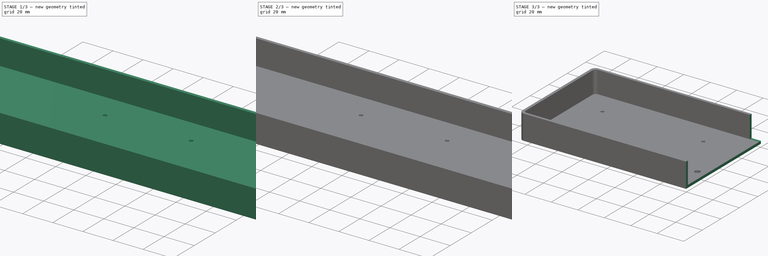
[diagram: build sequence overview — one tinted view per stage of 3, left to right]
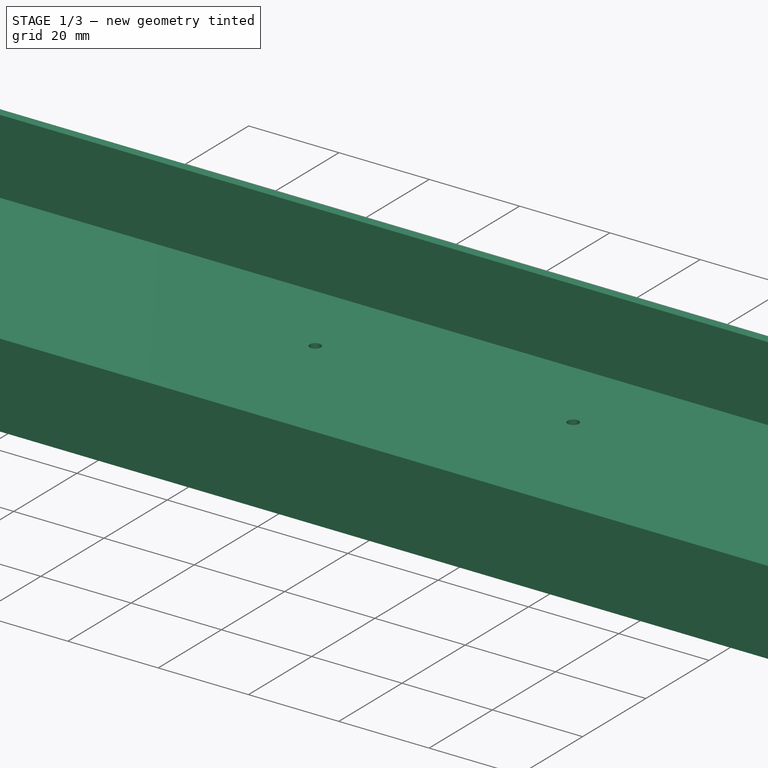
[diagram: stage 1 of 3 — iso view after this stage's code; geometry added in this stage tinted green]
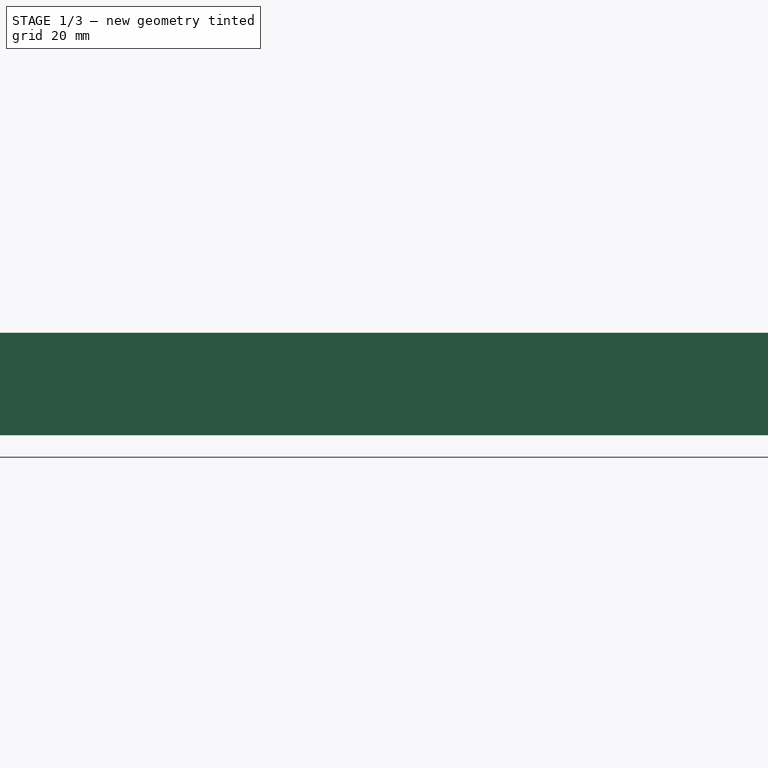
[diagram: stage 1 of 3 — front view after this stage's code; geometry added in this stage tinted green]
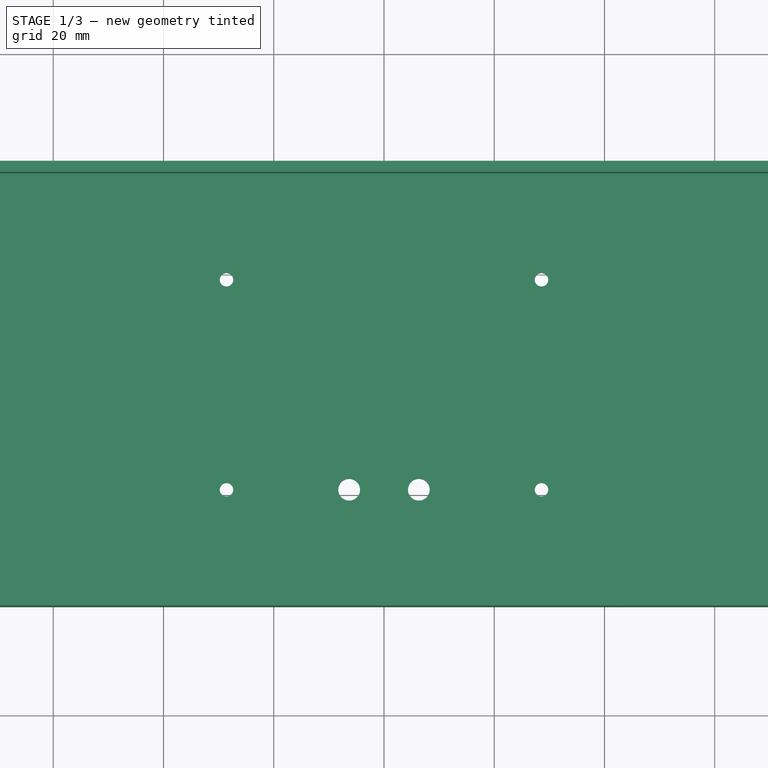
[diagram: stage 1 of 3 — top view after this stage's code; geometry added in this stage tinted green]
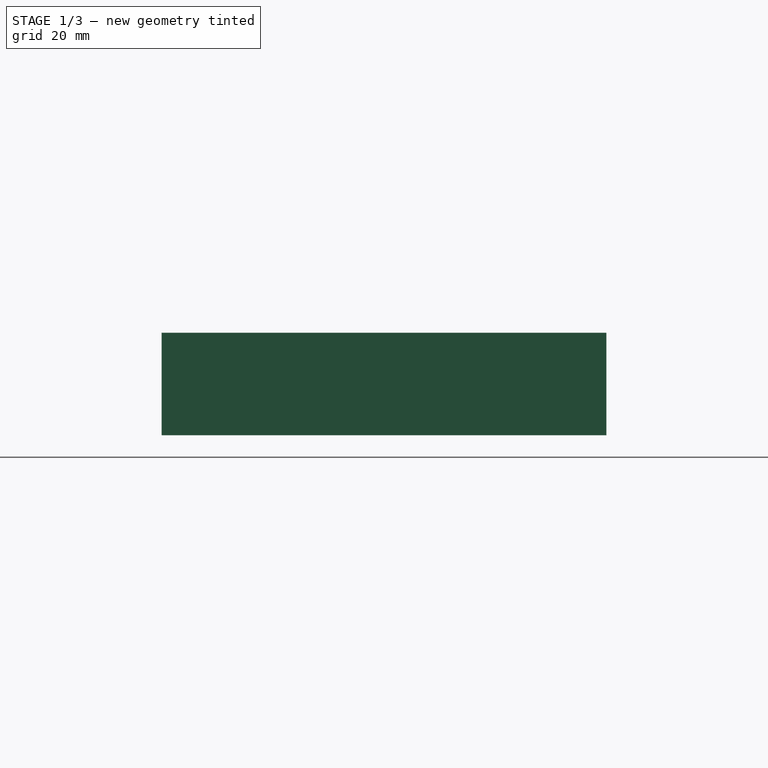
[diagram: stage 1 of 3 — right view after this stage's code; geometry added in this stage tinted green]
FCSTD DOCUMENT  (FreeCAD 0.19R24291 (Git))
Label: polyglot-case
License: All rights reserved
LicenseURL: http://en.wikipedia.org/wiki/All_rights_reserved
objects: Sketcher::SketchObject×4, PartDesign::Pocket×3, PartDesign::Fillet×2, Spreadsheet::Sheet×1, PartDesign::Pad×1, PartDesign::Body×1
note: 17 computed .brp shape members not serialized (recipe doc carries the construction recipe); baked Part::Feature solids carry a one-line shape summary decoded from their .brp

FEATURE [Sketcher::SketchObject] Sketch
  FullyConstrained = true
  MapMode = 5
  Support = -> [XY_Plane]
  expr: Constraints[9] = <<param>>.outer_length
  expr: Constraints[10] = <<param>>.outer_width
  expr: Constraints[16] = <<param>>.reset_button_distance
  expr: Constraints[18] = <<param>>.one_u
  expr: Constraints[11] = <<param>>.hole_size
  expr: Constraints[12] = <<param>>.hole_size
  expr: Constraints[13] = <<param>>.reset_button_size
  expr: Constraints[14] = <<param>>.top_left_hole_distance
  expr: Constraints[15] = <<param>>.middle_left_hole_distance
  expr: Constraints[17] = <<param>>.one_u
  expr: Constraints[19] = <<param>>.one_u
  sketch-geometry (14):
    g0: LineSegment StartX=-126.075 StartY=40.35 StartZ=0 EndX=126.075 EndY=40.35 EndZ=0
    g1: LineSegment StartX=126.075 StartY=40.35 StartZ=0 EndX=126.075 EndY=-40.35 EndZ=0
    g2: LineSegment StartX=126.075 StartY=-40.35 StartZ=0 EndX=-126.075 EndY=-40.35 EndZ=0
    g3: LineSegment StartX=-126.075 StartY=-40.35 StartZ=0 EndX=-126.075 EndY=40.35 EndZ=0
    g4: Circle CenterX=-104.775 CenterY=19.05 CenterZ=0 NormalX=0 NormalY=0 NormalZ=1 AngleXU=0 Radius=1.225
    g5: Circle CenterX=-28.575 CenterY=19.05 CenterZ=0 NormalX=0 NormalY=0 NormalZ=1 AngleXU=0 Radius=1.225
    g6: Circle CenterX=-6.3189 CenterY=-19.05 CenterZ=0 NormalX=0 NormalY=0 NormalZ=1 AngleXU=0 Radius=1.975
    g7: Circle CenterX=-104.775 CenterY=-19.05 CenterZ=0 NormalX=0 NormalY=0 NormalZ=1 AngleXU=0 Radius=1.225
    g8: Circle CenterX=-28.575 CenterY=-19.05 CenterZ=0 NormalX=0 NormalY=0 NormalZ=1 AngleXU=0 Radius=1.225
    g9: Circle CenterX=6.3189 CenterY=-19.05 CenterZ=0 NormalX=0 NormalY=0 NormalZ=1 AngleXU=0 Radius=1.975
    g10: Circle CenterX=28.575 CenterY=-19.05 CenterZ=0 NormalX=0 NormalY=0 NormalZ=1 AngleXU=0 Radius=1.225
    g11: Circle CenterX=28.575 CenterY=19.05 CenterZ=0 NormalX=0 NormalY=0 NormalZ=1 AngleXU=0 Radius=1.225
    g12: Circle CenterX=104.775 CenterY=19.05 CenterZ=0 NormalX=0 NormalY=0 NormalZ=1 AngleXU=0 Radius=1.225
    g13: Circle CenterX=104.775 CenterY=-19.05 CenterZ=0 NormalX=0 NormalY=0 NormalZ=1 AngleXU=0 Radius=1.225
  constraints (31):
    c: Coincident(g0,g1)
    c: Coincident(g1,g2)
    c: Coincident(g2,g3)
    c: Coincident(g3,g0)
    c: Horizontal(g0)
    c: Horizontal(g2)
    c: Vertical(g1)
    c: Vertical(g3)
    c: Symmetric(g0,g1,g-1)
    c: DistanceX(g0,g0) = 252.15
    c: DistanceY(g3,g3) = 80.7
    c: Radius(g4) = 1.225
    c: Radius(g5) = 1.225
    c: Radius(g6) = 1.975
    c: DistanceX(g4,g-1) = 104.775
    c: DistanceX(g5,g-1) = 28.575
    c: DistanceX(g6,g-1) = 6.3189
    c: DistanceY(g-1,g5) = 19.05
    c: DistanceY(g-1,g4) = 19.05
    c: DistanceY(g6,g-1) = 19.05
    c: Equal(g4,g7)
    c: Equal(g4,g8)
    c: Equal(g6,g9)
    c: Equal(g4, g10-g13) x4
    c: Symmetric(g6,g9,g-2)
    c: Symmetric(g5,g11,g-2)
    c: Symmetric(g5,g8,g-1)
    c: Symmetric(g5,g10,g-1)
    c: Symmetric(g4,g7,g-1)
    c: Symmetric(g4,g13,g-1)
    c: Symmetric(g4,g12,g-2)
FEATURE [Spreadsheet::Sheet] Spreadsheet  label="param"
  cells = A1=width; B1(width)==76.2 + tolerance * 2; D1=tolerance; E1(tolerance)=0.25; A2=length; B2(length)==247.65 + tolerance * 2; D2=1u; E2(one_u)=19.05; A3=height; B3(height)=16.6; A4=wall thickness; B4(wall_thickness)=2; A5=corner fillet radius; B5(corner_fillet_radius)=2.3813; A7=top left hole; B7(top_left_hole_distance)=104.775; A8=middle left hole; B8(middle_left_hole_distance)=28.575; A9=reset button; B9(reset_button_distance)=6.3189; A11=hole size; B11(hole_size)==1.1 + tolerance / 2; A12=reset button size; B12(reset_button_size)==(3.7 + tolerance) / 2; A14=outer width; B14(outer_width)==width + wall_thickness * 2; A15=outer length; B15(outer_length)==length + wall_thickness * 2; A17=outer height; B17(outer_height)==height + wall_thickness; A18=outer corner fillet radius; B18(outer_corner_fillet_radius)==corner_fillet_radius * 3 / 2; A20=USB cut; B20(USB_cut)=14
FEATURE [PartDesign::Pad] Pad
  Direction = (1,1,1)
  Length = 18.6
  Length2 = 100
  Profile = -> Sketch
  Type = 0
  expr: Length = <<param>>.outer_height
FEATURE [Sketcher::SketchObject] Sketch001
  FullyConstrained = true
  MapMode = 5
  Placement = pos=(0,0,18.6) rot=(0,0,1;0rad)
  Support = -> [Pad]
  expr: Constraints[9] = <<param>>.length
  expr: Constraints[10] = <<param>>.width
  sketch-geometry (4):
    g0: LineSegment StartX=-124.075 StartY=38.35 StartZ=0 EndX=124.075 EndY=38.35 EndZ=0
    g1: LineSegment StartX=124.075 StartY=38.35 StartZ=0 EndX=124.075 EndY=-38.35 EndZ=0
    g2: LineSegment StartX=124.075 StartY=-38.35 StartZ=0 EndX=-124.075 EndY=-38.35 EndZ=0
    g3: LineSegment StartX=-124.075 StartY=-38.35 StartZ=0 EndX=-124.075 EndY=38.35 EndZ=0
  constraints (11):
    c: Coincident(g0,g1)
    c: Coincident(g1,g2)
    c: Coincident(g2,g3)
    c: Coincident(g3,g0)
    c: Horizontal(g0)
    c: Horizontal(g2)
    c: Vertical(g1)
    c: Vertical(g3)
    c: Symmetric(g0,g1,g-1)
    c: DistanceX(g0,g0) = 248.15
    c: DistanceY(g3,g3) = 76.7
FEATURE [PartDesign::Pocket] Pocket
  BaseFeature = -> Pad
  Length = 16.6
  Length2 = 100
  Profile = -> Sketch001
  Type = 0
  expr: Length = Spreadsheet.height
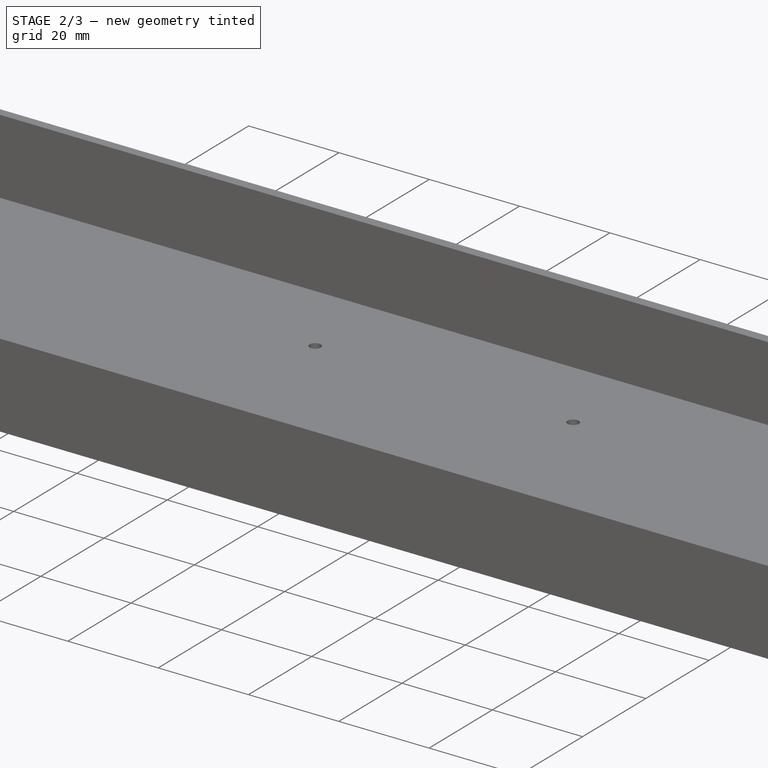
[diagram: stage 2 of 3 — iso view after this stage's code; geometry added in this stage tinted green]
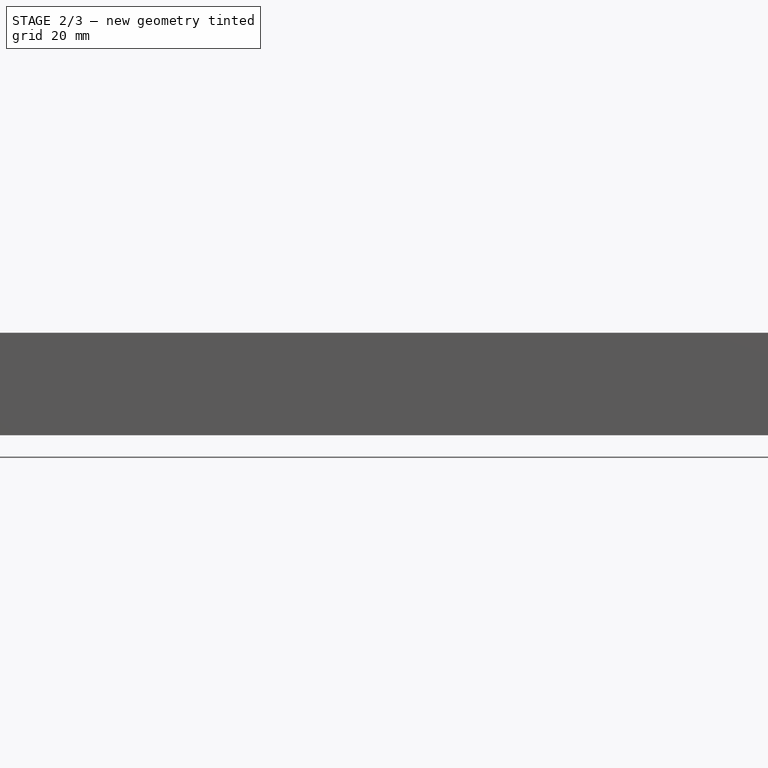
[diagram: stage 2 of 3 — front view after this stage's code; geometry added in this stage tinted green]
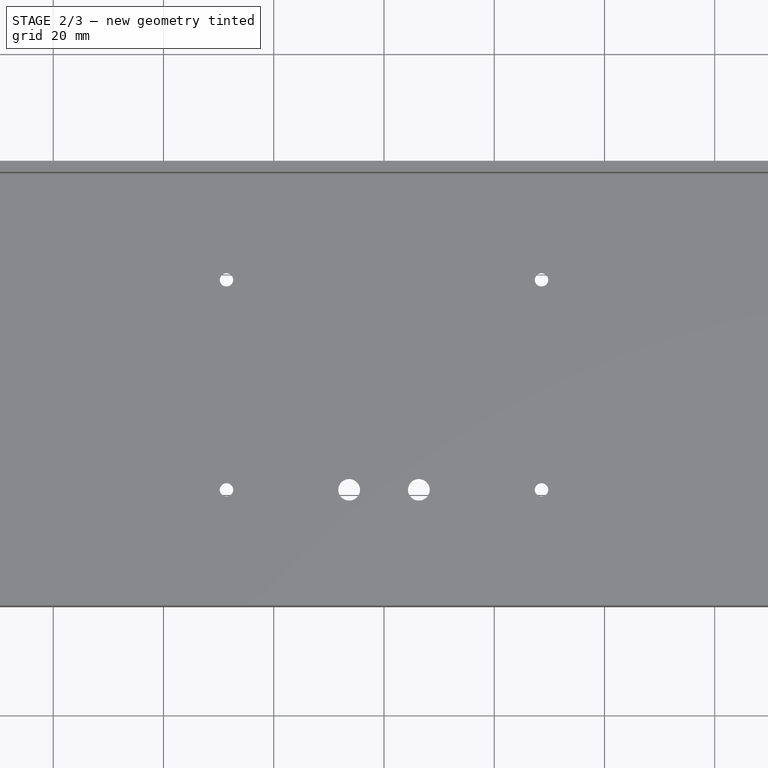
[diagram: stage 2 of 3 — top view after this stage's code; geometry added in this stage tinted green]
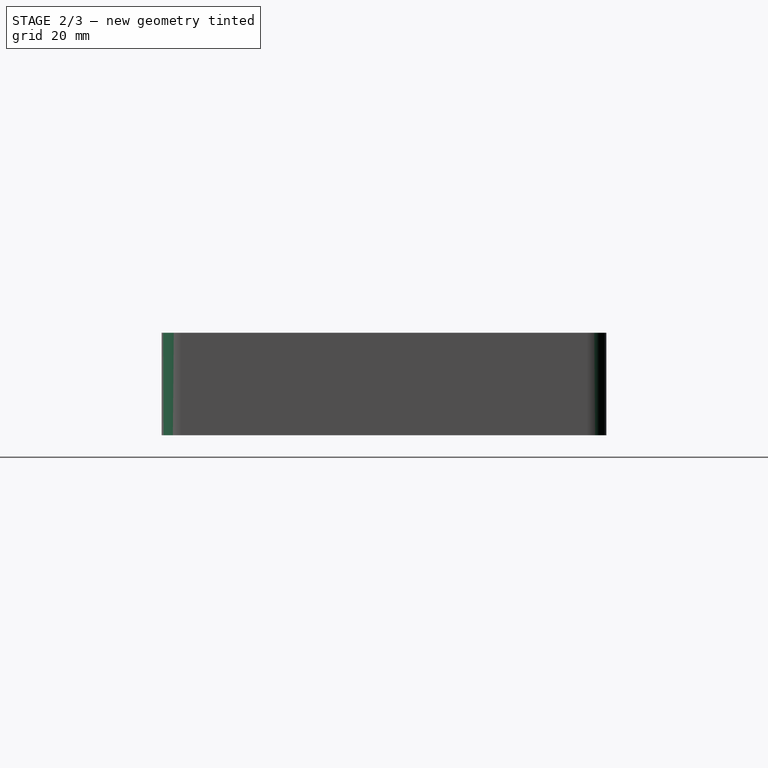
[diagram: stage 2 of 3 — right view after this stage's code; geometry added in this stage tinted green]
FEATURE [PartDesign::Fillet] Fillet
  Base = -> Pocket [Edge47,Edge52,Edge48,Edge50]
  BaseFeature = -> Pocket
  Radius = 2.3813
  SupportTransform = false
  expr: Radius = <<param>>.corner_fillet_radius
FEATURE [PartDesign::Fillet] Fillet001
  Base = -> Fillet [Edge29,Edge32,Edge34,Edge30]
  BaseFeature = -> Fillet
  Radius = 3.57195
  SupportTransform = false
  expr: Radius = <<param>>.outer_corner_fillet_radius
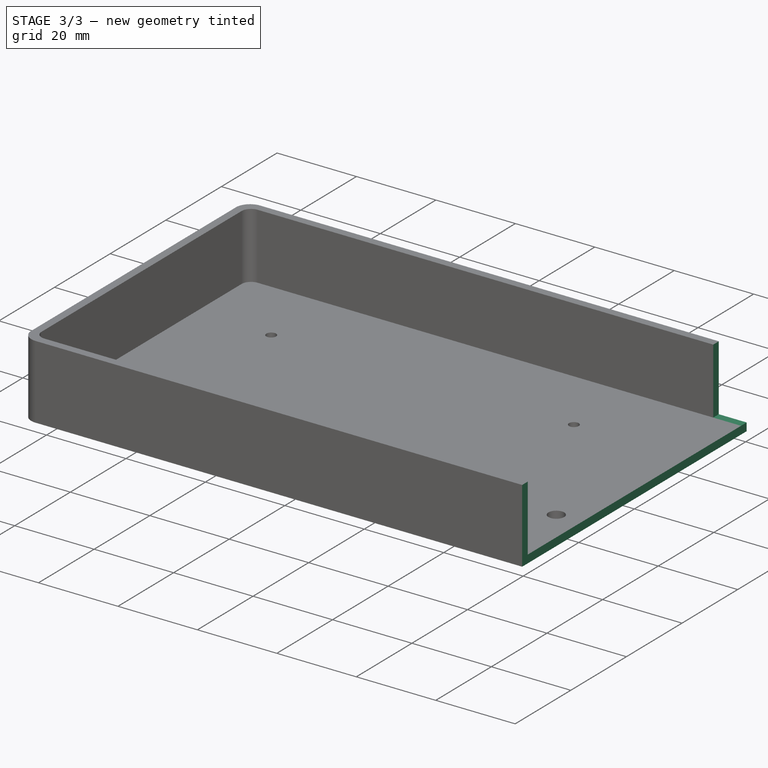
[diagram: stage 3 of 3 — iso view after this stage's code; geometry added in this stage tinted green]
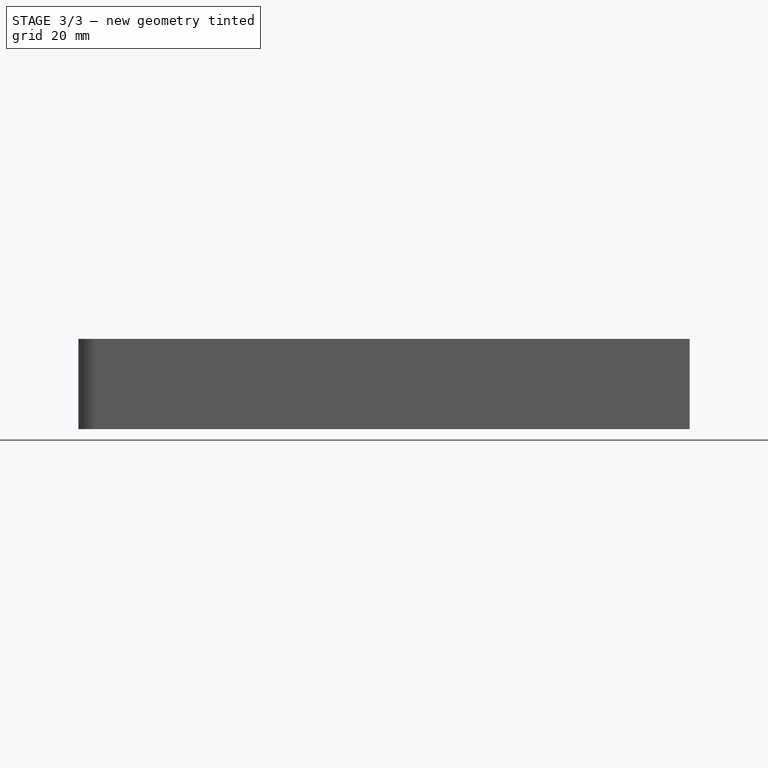
[diagram: stage 3 of 3 — front view after this stage's code; geometry added in this stage tinted green]
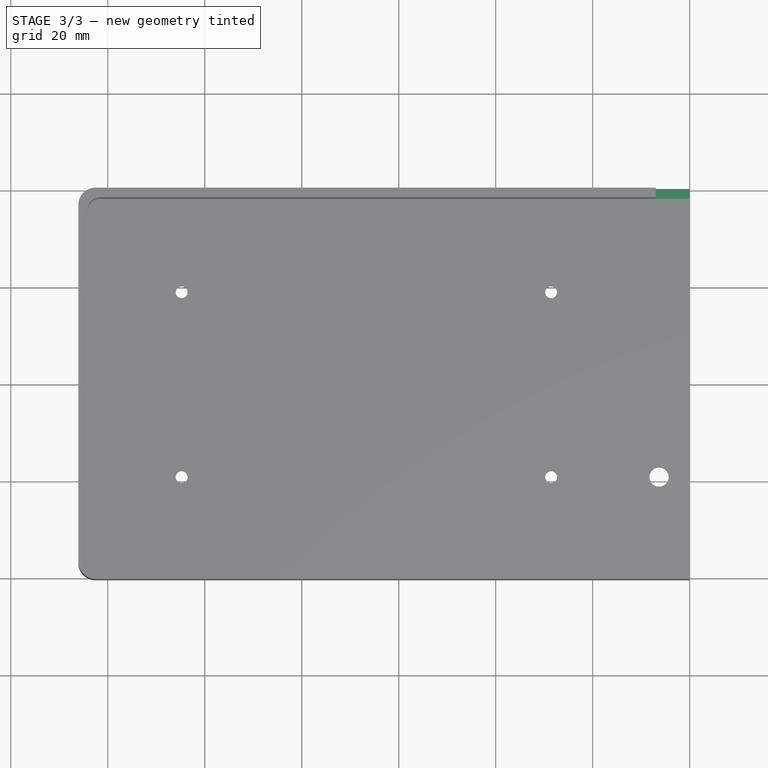
[diagram: stage 3 of 3 — top view after this stage's code; geometry added in this stage tinted green]
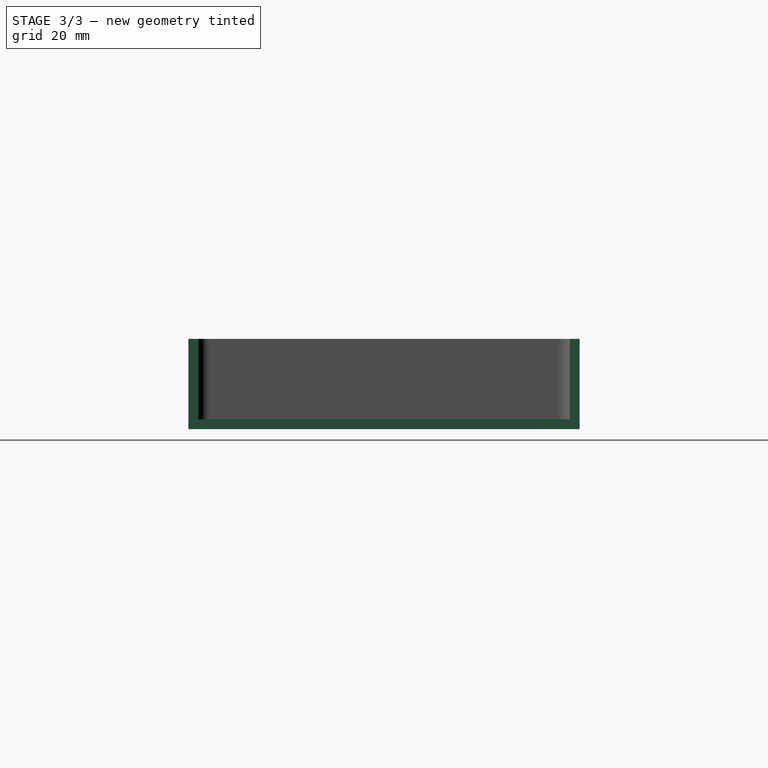
[diagram: stage 3 of 3 — right view after this stage's code; geometry added in this stage tinted green]
FEATURE [Sketcher::SketchObject] Sketch002
  FullyConstrained = true
  MapMode = 5
  Placement = pos=(0,0,18.6) rot=(0,0,1;0rad)
  Support = -> [Fillet001]
  expr: Constraints[8] = <<param>>.USB_cut
  expr: Constraints[9] = <<param>>.wall_thickness
  expr: Constraints[10] = <<param>>.width / 2
  sketch-geometry (4):
    g0: LineSegment StartX=-7 StartY=40.35 StartZ=0 EndX=7 EndY=40.35 EndZ=0
    g1: LineSegment StartX=7 StartY=40.35 StartZ=0 EndX=7 EndY=38.35 EndZ=0
    g2: LineSegment StartX=7 StartY=38.35 StartZ=0 EndX=-7 EndY=38.35 EndZ=0
    g3: LineSegment StartX=-7 StartY=38.35 StartZ=0 EndX=-7 EndY=40.35 EndZ=0
  constraints (11):
    c: Coincident(g0,g1)
    c: Coincident(g1,g2)
    c: Coincident(g2,g3)
    c: Coincident(g3,g0)
    c: Horizontal(g2)
    c: Vertical(g1)
    c: Vertical(g3)
    c: Symmetric(g0,g0,g-2)
    c: DistanceX(g0,g0) = 14
    c: DistanceY(g1,g1) = 2
    c: DistanceY(g-1,g2) = 38.35
FEATURE [PartDesign::Pocket] Pocket001
  BaseFeature = -> Fillet001
  Length = 16.6
  Length2 = 100
  Profile = -> Sketch002
  Type = 0
  expr: Length = <<param>>.height
FEATURE [Sketcher::SketchObject] Sketch003
  FullyConstrained = true
  MapMode = 5
  Placement = pos=(0,0,18.6) rot=(0,0,1;0rad)
  Support = -> [Pocket001]
  sketch-geometry (4):
    g0: LineSegment StartX=0 StartY=65.6297 StartZ=0 EndX=131.259 EndY=65.6297 EndZ=0
    g1: LineSegment StartX=131.259 StartY=65.6297 StartZ=0 EndX=131.259 EndY=-65.6297 EndZ=0
    g2: LineSegment StartX=131.259 StartY=-65.6297 StartZ=0 EndX=0 EndY=-65.6297 EndZ=0
    g3: LineSegment StartX=0 StartY=-65.6297 StartZ=0 EndX=0 EndY=65.6297 EndZ=0
  constraints (4):
    c: Block(g0)
    c: Block(g1)
    c: Block(g2)
    c: Block(g3)
FEATURE [PartDesign::Pocket] Pocket002  label="cut_in_half"
  BaseFeature = -> Pocket001
  Length = 20
  Length2 = 100
  Profile = -> Sketch003
  Type = 0
FEATURE [PartDesign::Body] Body
  Group = -> [Sketch,Pad,Sketch001,Pocket,Fillet,Fillet001,Sketch002,Pocket001,Sketch003,Pocket002]
  Origin = -> Origin
  Tip = -> Pocket002
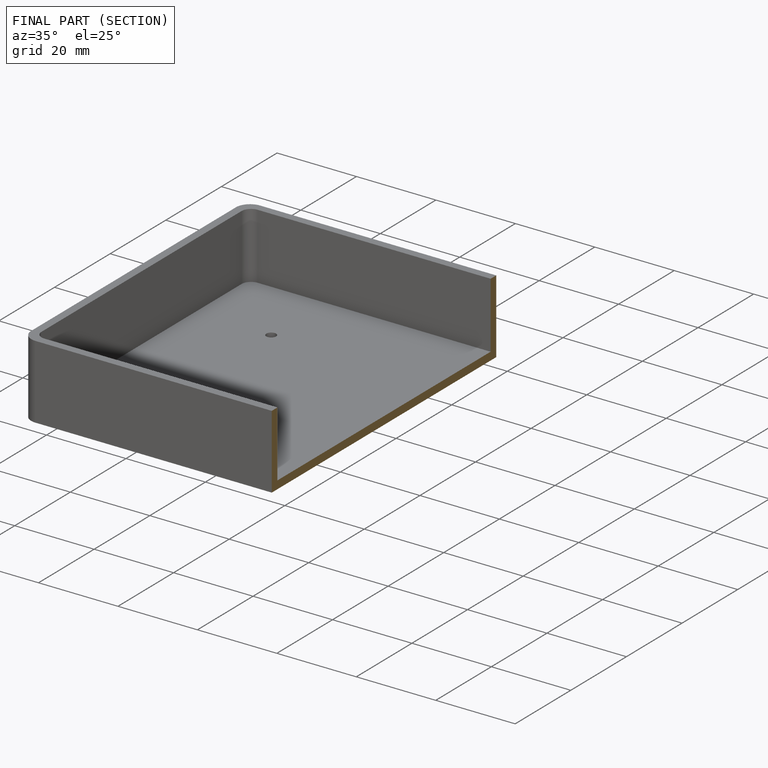
[diagram: finished part — half-section view (interior)]
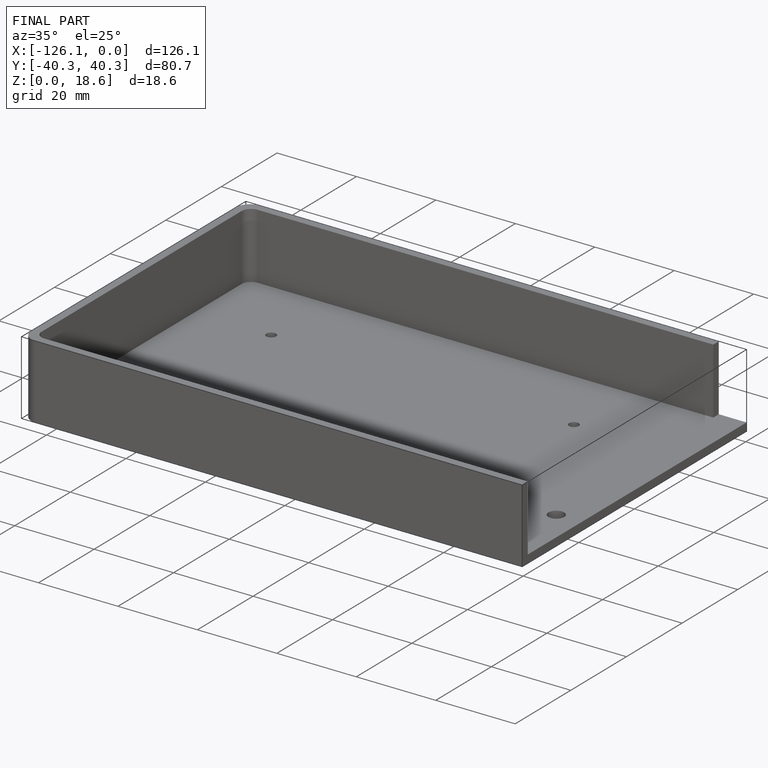
[diagram: finished part — iso view with bounding-box wireframe]
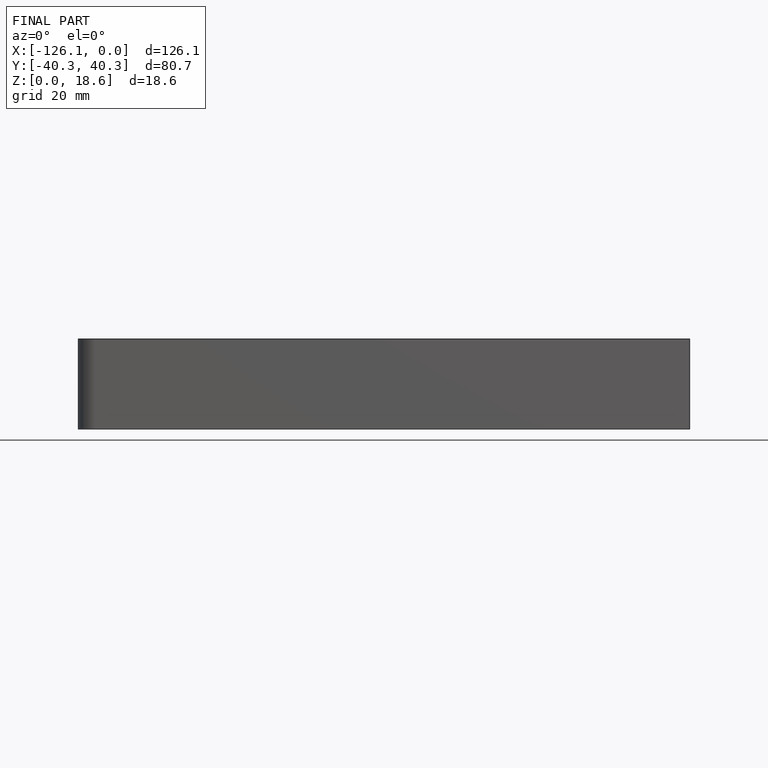
[diagram: finished part — front view with bounding-box wireframe]
